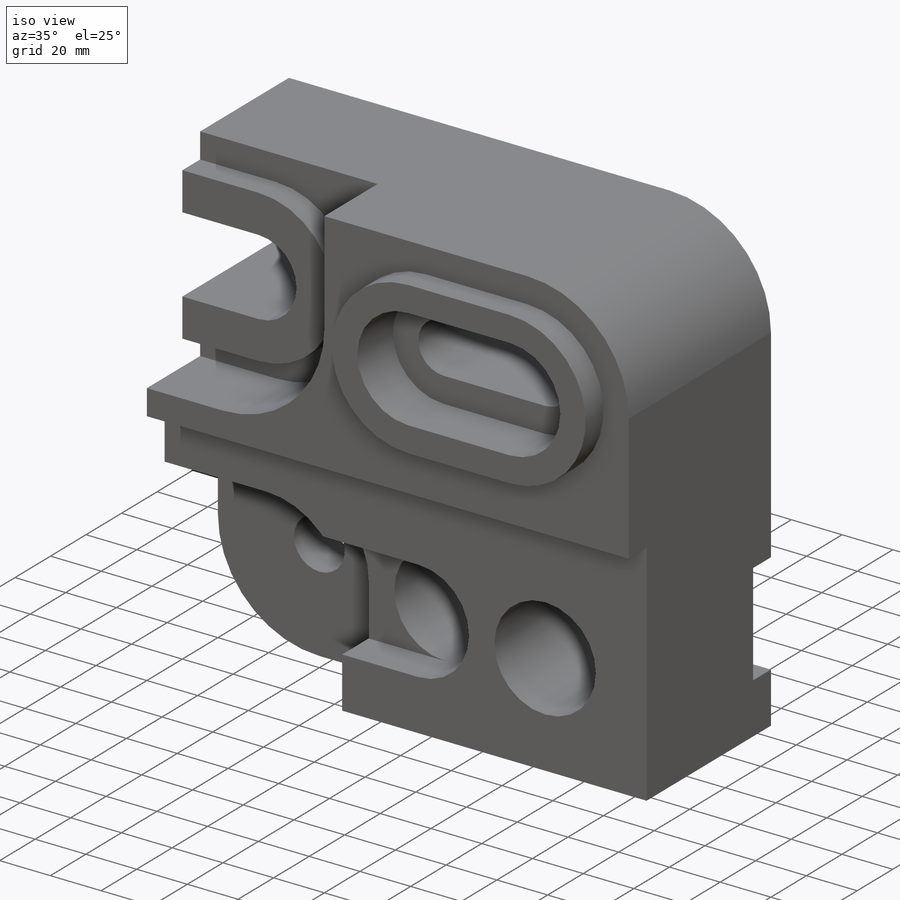
[diagram: iso view]
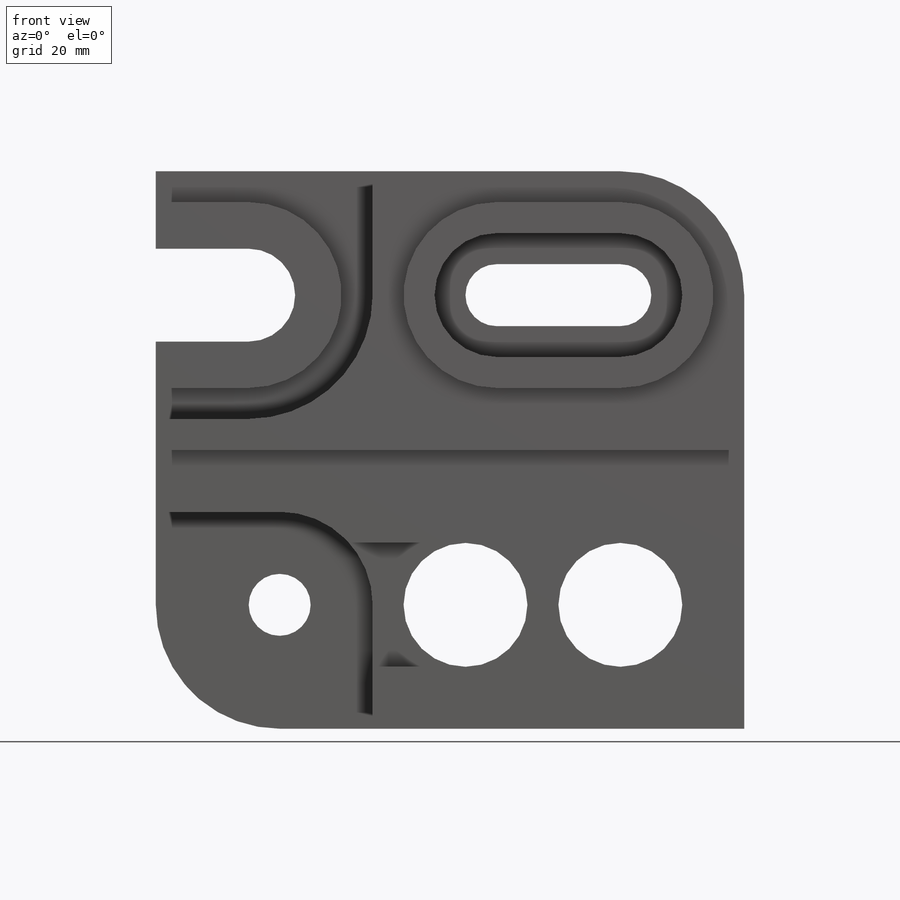
[diagram: front view]
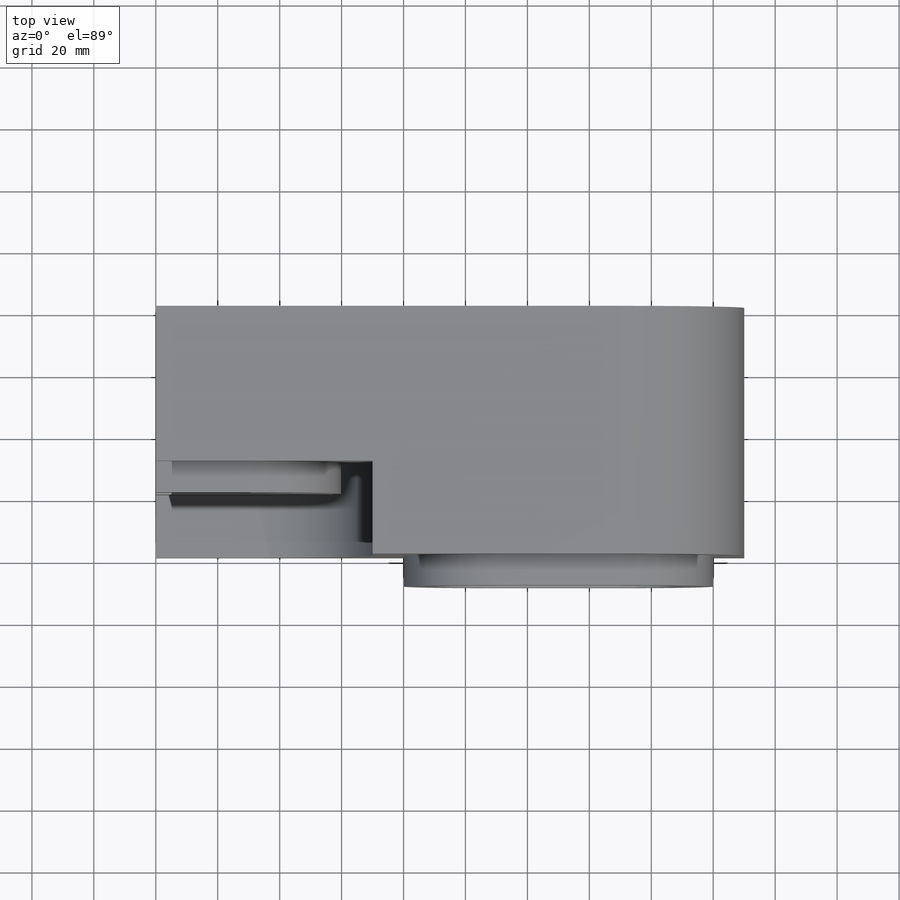
[diagram: top view]
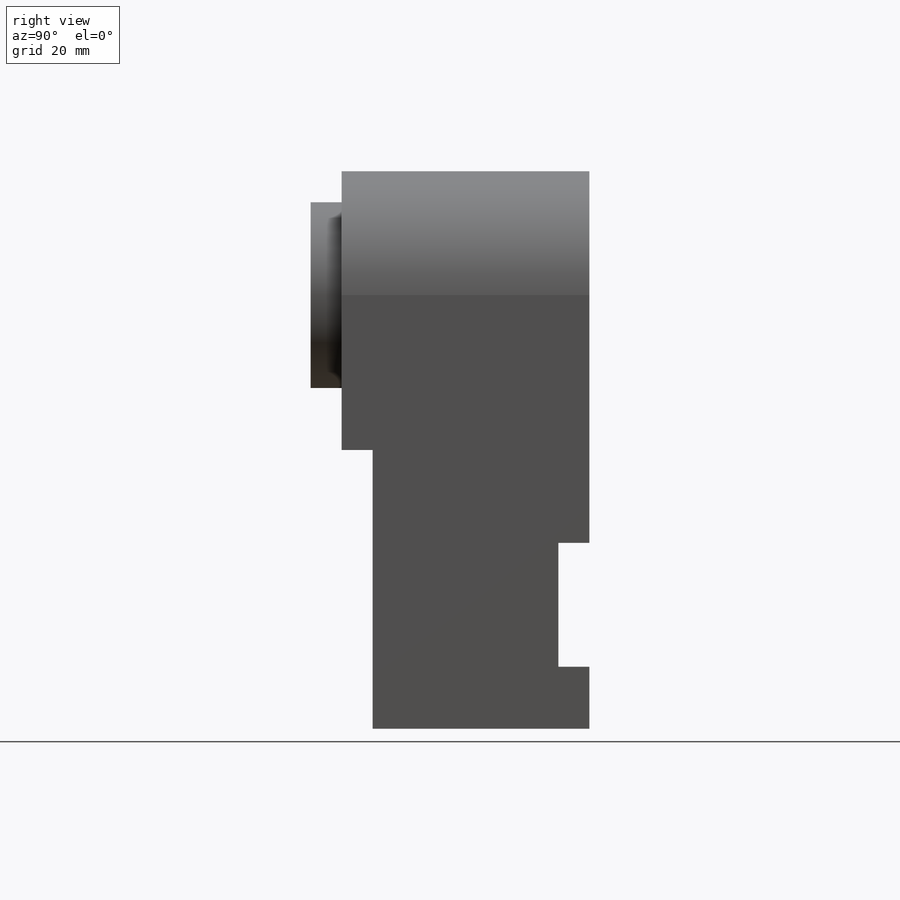
[diagram: right view]
SOLIDWORKS PART (.sldprt)
format: sldprt  version: not decoded by parser v0  size: 592,384 bytes
history: native  units: mm
features: sketch x23, cut_extrude x16, extrude x7, plane x2, material x1 (+13 scaffold rows collapsed)
feature tree (62):
  scaffold x13  (default folders/planes/origin — collapsed)
  material  "Material <not specified>"
  sketch  "Sketch1"  dims[D1=190.0mm D2=180.0mm]
  extrude  "Boss-Extrude1"  Depth=70mm
  sketch  "Sketch2"  dims[D1=40.0mm D2=10.0mm D3=40.0mm D4=40.0mm]
  cut_extrude  "Cut-Extrude1"  Depth=70mm
  sketch  "Sketch3"  dims[D1=40.0mm]
  cut_extrude  "Cut-Extrude2"  Depth=20mm
  sketch  "Sketch4"  dims[D1=40.0mm D3=40.0mm D2=40.0mm D4=40.0mm D5=40.0mm]
  cut_extrude  "Cut-Extrude4"  Depth=116mm
  sketch  "Sketch5"  dims[D5=15.0mm D1=30.0mm D2=30.0mm D3=25.0mm D4=30.0mm]
  cut_extrude  "Cut-Extrude5"  Depth=116mm
  sketch  "Sketch6"  dims[D1=20.0mm D2=90.0mm]
  cut_extrude  "Cut-Extrude6"  Depth=242mm
  sketch  "Sketch7"  dims[D1=60.0mm]
  extrude  "Boss-Extrude2"  Depth=10mm
  sketch  "Sketch11"  dims[D1=20.0mm]
  cut_extrude  "Cut-Extrude12"  Depth=20mm
  sketch  "Sketch12"  dims[D3=30.0mm D1=15.0mm D2=15.0mm]
  extrude  "Boss-Extrude4"  Depth=10mm
  sketch  "Sketch13"
  extrude  "Boss-Extrude5"  Depth=30mm
  sketch  "Sketch14"  dims[D1=60.0mm]
  cut_extrude  "Cut-Extrude13"  Depth=10mm
  sketch  "Sketch15"
  extrude  "Boss-Extrude6"  Depth=30mm
  sketch  "Sketch16"  dims[D1=40.0mm]
  cut_extrude  "Cut-Extrude14"  Depth=30mm
  plane  "Plane1"
  sketch  "Sketch18"  dims[D1=60.0mm]
  extrude  "Boss-Extrude7"  Depth=30mm
  plane  "Plane2"
  sketch  "Sketch20"  dims[D1=60.0mm]
  extrude  "Boss-Extrude8"  Depth=10mm
  sketch  "Sketch21"  dims[D1=40.0mm]
  cut_extrude  "Cut-Extrude15"  Depth=20mm
  sketch  "Sketch22"  dims[D1=20.0mm]
  cut_extrude  "Cut-Extrude16"  Depth=62mm
  sketch  "Sketch23"  dims[D1=30.0mm D2=40.0mm D3=0.0mm D4=30.0mm D5=40.0mm D6=40.0mm D7=30.0mm]
  cut_extrude  "Cut-Extrude17"  Depth=30mm
  sketch  "Sketch24"  dims[D1=40.0mm D2=40.0mm D3=30.0mm D4=30.0mm D5=40.0mm]
  cut_extrude  "Cut-Extrude18"  Depth=15mm
  sketch  "Sketch25"  dims[D2=40.0mm D1=50.0mm D3=40.0mm]
  cut_extrude  "Cut-Extrude19"  Depth=50mm
  sketch  "Sketch26"  dims[D1=20.0mm D2=40.0mm D3=40.0mm]
  cut_extrude  "Cut-Extrude20"  Depth=20mm
  sketch  "Sketch27"  dims[c1.D1=30.0mm c1.D5=30.0mm c1.D2=20.0mm c1.D3=10.0mm c1.D4=~16.389526mm c2.D1=0.0mm c2.D4=0.0mm c2.D5=~136.457513mm]
  cut_extrude  "Cut-Extrude21"  Depth=20mm
  sketch  "Sketch28"  dims[D1=20.0mm D2=40.0mm D3=10.0mm]
  cut_extrude  "Cut-Extrude22"  Depth=59mm
decode coverage: 44 of 46 modeling features carry decoded parameters
note: ~ marks probable driven/reference dimensions
note: suppression state not decoded; provenance and decode notes live in map.json
